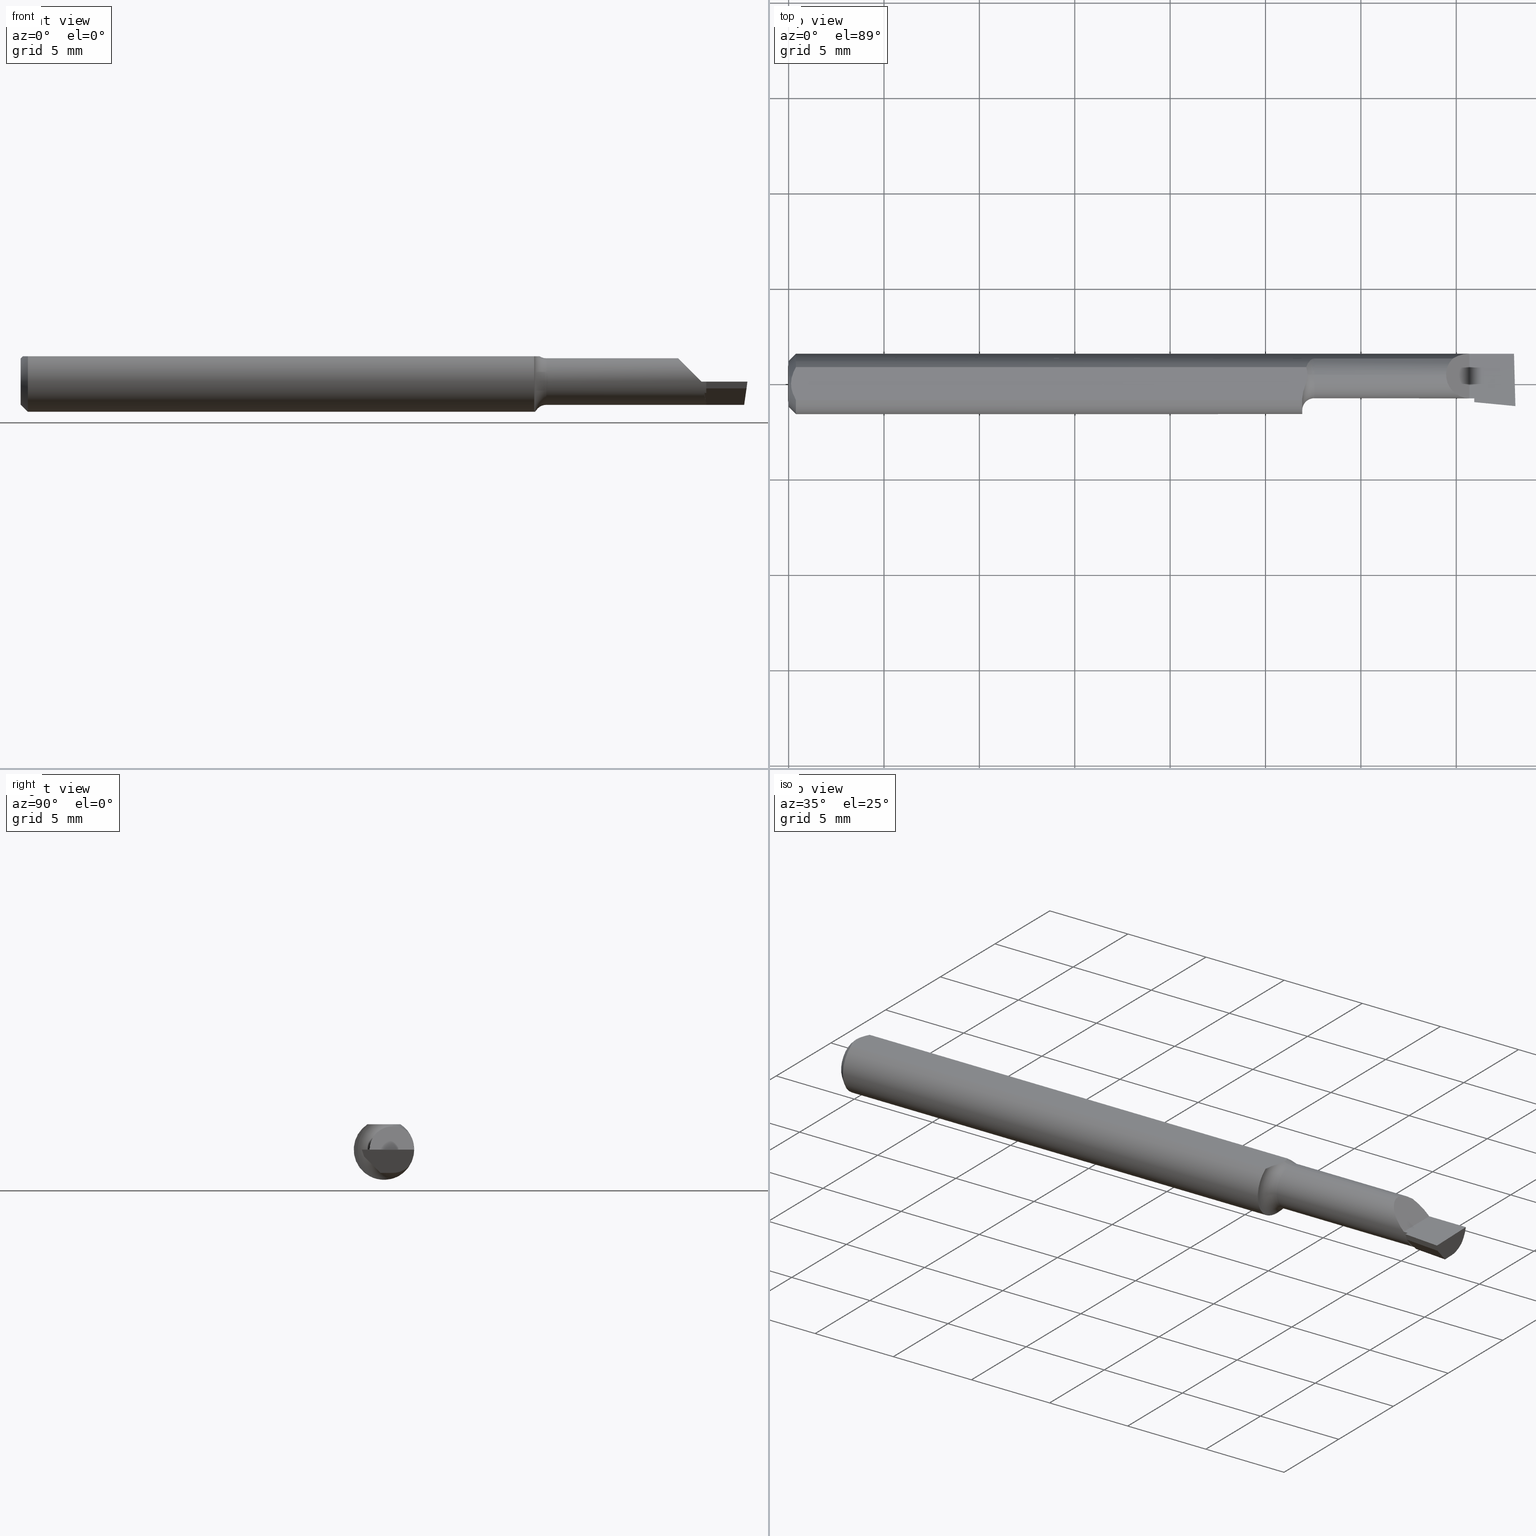
[diagram: canonical four-view strip — front | top / right | iso, engineering-drawing reading convention]
A machine part, canonical four-view strip (front | top / right | iso — engineering-drawing reading convention). The complete STEP part file that produces these views, byte-faithful:
ISO-10303-21;
HEADER;
FILE_DESCRIPTION (( 'STEP AP203' ),
    '1' );
FILE_NAME ('211869-LHB110400.STEP',
    '2024-08-22T22:32:02',
    ( '' ),
    ( '' ),
    'SwSTEP 2.0',
    'SolidWorks 2024',
    '' );
FILE_SCHEMA (( 'CONFIG_CONTROL_DESIGN' ));
ENDSEC;

DATA;
#1 = ORIENTED_EDGE ( 'NONE', *, *, #345, .F. ) ;
#2 = CARTESIAN_POINT ( 'NONE',  ( 0.004999999999989933504, 7.898418140378181697E-16, 0.05235000000000000070 ) ) ;
#3 = PLANE ( 'NONE',  #719 ) ;
#4 = ORIENTED_EDGE ( 'NONE', *, *, #323, .T. ) ;
#5 = FACE_OUTER_BOUND ( 'NONE', #74, .T. ) ;
#6 = VECTOR ( 'NONE', #550, 39.37007874015748143 ) ;
#7 = ORGANIZATION ( 'UNSPECIFIED', 'UNSPECIFIED', '' ) ;
#8 = DIRECTION ( 'NONE',  ( 0.000000000000000000, 0.000000000000000000, 1.000000000000000000 ) ) ;
#9 = LOCAL_TIME ( 15, 32, 2.000000000000000000, #284 ) ;
#10 = CARTESIAN_POINT ( 'NONE',  ( 2.249639673992802012E-32, -0.02965000000000000968, 1.836970198721035850E-16 ) ) ;
#11 = CYLINDRICAL_SURFACE ( 'NONE', #221, 0.04805000000000001631 ) ;
#12 = EDGE_LOOP ( 'NONE', ( #544, #552, #526 ) ) ;
#13 = CARTESIAN_POINT ( 'NONE',  ( 1.069741742128375694, 0.03819491529868379587, 0.04955034320923035890 ) ) ;
#14 = DIRECTION ( 'NONE',  ( 0.000000000000000000, 0.000000000000000000, -1.000000000000000000 ) ) ;
#15 = ADVANCED_FACE ( 'NONE', ( #356 ), #477, .T. ) ;
#16 = DIRECTION ( 'NONE',  ( -1.000000000000000000, -0.000000000000000000, -0.000000000000000000 ) ) ;
#17 = ORIENTED_EDGE ( 'NONE', *, *, #408, .F. ) ;
#18 = AXIS2_PLACEMENT_3D ( 'NONE', #380, #497, #197 ) ;
#19 = CARTESIAN_POINT ( 'NONE',  ( 1.411693566917664233, -0.02373862507460325691, -0.02308979811133086285 ) ) ;
#20 = CC_DESIGN_PERSON_AND_ORGANIZATION_ASSIGNMENT ( #443, #396, ( #442 ) ) ;
#21 = VERTEX_POINT ( 'NONE', #425 ) ;
#22 = CARTESIAN_POINT ( 'NONE',  ( 0.01500000000000000465, 0.000000000000000000, 0.000000000000000000 ) ) ;
#23 =( BOUNDED_CURVE ( )  B_SPLINE_CURVE ( 3, ( #159, #64, #292, #393 ),
 .UNSPECIFIED., .F., .T. ) 
 B_SPLINE_CURVE_WITH_KNOTS ( ( 4, 4 ),
 ( 0.000000000000000000, 1.570796326794896780 ),
 .UNSPECIFIED. ) 
 CURVE ( )  GEOMETRIC_REPRESENTATION_ITEM ( )  RATIONAL_B_SPLINE_CURVE ( ( 1.000000000000000000, 0.8047378541243649375, 0.8047378541243649375, 1.000000000000000000 ) ) 
 REPRESENTATION_ITEM ( '' )  );
#24 = EDGE_CURVE ( 'NONE', #682, #331, #178, .T. ) ;
#25 = CARTESIAN_POINT ( 'NONE',  ( 1.410837422842597277, -0.03263002125198111864, -0.01400000000000000376 ) ) ;
#26 = CARTESIAN_POINT ( 'NONE',  ( 0.000000000000000000, 0.000000000000000000, 0.000000000000000000 ) ) ;
#27 = EDGE_LOOP ( 'NONE', ( #326, #264, #697, #476, #549, #318, #278, #66 ) ) ;
#28 = B_SPLINE_CURVE_WITH_KNOTS ( 'NONE', 3,
 ( #446, #683, #695, #383, #623, #566, #156, #164, #629, #511 ),
 .UNSPECIFIED., .F., .F.,
 ( 4, 2, 2, 2, 4 ),
 ( 0.008710907782719672435, 0.009350423987949217294, 0.009510303039256602642, 0.009670182090563987989, 0.009989940193178756950 ),
 .UNSPECIFIED. ) ;
#29 = CARTESIAN_POINT ( 'NONE',  ( 1.060000000000000275, -0.03386738844380016850, 0.05235000000000000070 ) ) ;
#30 = VERTEX_POINT ( 'NONE', #534 ) ;
#31 = CIRCLE ( 'NONE', #514, 0.02500000000000001527 ) ;
#32 = DIRECTION ( 'NONE',  ( -1.000000000000000000, -0.000000000000000000, -0.000000000000000000 ) ) ;
#33 = EDGE_CURVE ( 'NONE', #678, #49, #138, .T. ) ;
#34 = B_SPLINE_CURVE_WITH_KNOTS ( 'NONE', 3,
 ( #2, #346, #755, #109, #694, #231 ),
 .UNSPECIFIED., .F., .F.,
 ( 4, 2, 4 ),
 ( 0.003037199019464981685, 0.003488061124369675782, 0.003938923229274369879 ),
 .UNSPECIFIED. ) ;
#35 = DIRECTION ( 'NONE',  ( 0.000000000000000000, 0.000000000000000000, -1.000000000000000000 ) ) ;
#36 = VERTEX_POINT ( 'NONE', #486 ) ;
#37 = ADVANCED_FACE ( 'NONE', ( #418 ), #658, .F. ) ;
#38 = DIRECTION ( 'NONE',  ( 0.000000000000000000, 0.000000000000000000, 1.000000000000000000 ) ) ;
#39 = LINE ( 'NONE', #763, #364 ) ;
#40 = EDGE_LOOP ( 'NONE', ( #214, #233 ) ) ;
#41 = CIRCLE ( 'NONE', #236, 0.06235000000000000264 ) ;
#42 = B_SPLINE_CURVE_WITH_KNOTS ( 'NONE', 3,
 ( #220, #455, #426, #306, #661, #359 ),
 .UNSPECIFIED., .F., .F.,
 ( 4, 2, 4 ),
 ( 0.002133667072902290657, 0.002585433046183636171, 0.003037199019464981685 ),
 .UNSPECIFIED. ) ;
#43 = DIRECTION ( 'NONE',  ( 0.000000000000000000, 0.000000000000000000, -1.000000000000000000 ) ) ;
#44 = ORIENTED_EDGE ( 'NONE', *, *, #80, .T. ) ;
#45 = FACE_OUTER_BOUND ( 'NONE', #173, .T. ) ;
#46 = DIRECTION ( 'NONE',  ( 0.000000000000000000, -1.000000000000000000, 0.000000000000000000 ) ) ;
#47 = ADVANCED_FACE ( 'NONE', ( #718 ), #89, .F. ) ;
#48 = DATE_AND_TIME ( #759, #9 ) ;
#49 = VERTEX_POINT ( 'NONE', #132 ) ;
#50 = CARTESIAN_POINT ( 'NONE',  ( 1.060000000000000275, -0.03016902173913061855, -0.05456512281030681533 ) ) ;
#51 = DIRECTION ( 'NONE',  ( 0.000000000000000000, 1.000000000000000000, -7.598598113218357399E-17 ) ) ;
#52 = DATE_AND_TIME ( #692, #670 ) ;
#53 = EDGE_CURVE ( 'NONE', #134, #338, #194, .T. ) ;
#54 = ORIENTED_EDGE ( 'NONE', *, *, #24, .F. ) ;
#55 = DIRECTION ( 'NONE',  ( -1.000000000000000000, -0.000000000000000000, -0.000000000000000000 ) ) ;
#56 = VECTOR ( 'NONE', #762, 39.37007874015748143 ) ;
#57 = CARTESIAN_POINT ( 'NONE',  ( 0.000000000000000000, 0.000000000000000000, 0.000000000000000000 ) ) ;
#58 = DIRECTION ( 'NONE',  ( 0.000000000000000000, 0.000000000000000000, 1.000000000000000000 ) ) ;
#59 = ORIENTED_EDGE ( 'NONE', *, *, #681, .T. ) ;
#60 = EDGE_CURVE ( 'NONE', #574, #678, #655, .T. ) ;
#61 = DIRECTION ( 'NONE',  ( 0.000000000000000000, 0.000000000000000000, 1.000000000000000000 ) ) ;
#62 = CARTESIAN_POINT ( 'NONE',  ( 1.370749270080770188, 0.05210000000000004211, 0.03425072991922942234 ) ) ;
#63 = ORIENTED_EDGE ( 'NONE', *, *, #345, .T. ) ;
#64 = CARTESIAN_POINT ( 'NONE',  ( 1.356949999999999656, -0.009747038327972792557, 0.04805000000000002325 ) ) ;
#65 = DIRECTION ( 'NONE',  ( 0.000000000000000000, 0.000000000000000000, 1.000000000000000000 ) ) ;
#66 = ORIENTED_EDGE ( 'NONE', *, *, #80, .F. ) ;
#67 = CYLINDRICAL_SURFACE ( 'NONE', #118, 0.04805000000000001631 ) ;
#68 = DIRECTION ( 'NONE',  ( -1.000000000000000000, -0.000000000000000000, -0.000000000000000000 ) ) ;
#69 = VECTOR ( 'NONE', #713, 39.37007874015748143 ) ;
#70 = DIRECTION ( 'NONE',  ( -0.000000000000000000, 1.000000000000000000, -0.000000000000000000 ) ) ;
#71 = FACE_OUTER_BOUND ( 'NONE', #639, .T. ) ;
#72 = VERTEX_POINT ( 'NONE', #734 ) ;
#73 = CARTESIAN_POINT ( 'NONE',  ( 1.496703728510623721, -0.03059696116044922226, -0.02443416050283582150 ) ) ;
#74 = EDGE_LOOP ( 'NONE', ( #502, #632, #672, #390, #199, #344 ) ) ;
#75 = CARTESIAN_POINT ( 'NONE',  ( 1.081001860247194912, 0.05138041438525032395, -0.03535223831097245722 ) ) ;
#76 = ORIENTED_EDGE ( 'NONE', *, *, #542, .F. ) ;
#77 = VECTOR ( 'NONE', #321, 39.37007874015748143 ) ;
#78 = LOCAL_TIME ( 15, 32, 2.000000000000000000, #229 ) ;
#79 = CARTESIAN_POINT ( 'NONE',  ( 1.076855754336166093, 0.04856891343705575098, -0.03913748562448279150 ) ) ;
#80 = EDGE_CURVE ( 'NONE', #36, #338, #82, .T. ) ;
#81 = CARTESIAN_POINT ( 'NONE',  ( 1.493274179223395448, -0.006952176690818228158, -0.04805000000000000243 ) ) ;
#82 = LINE ( 'NONE', #144, #553 ) ;
#83 = PERSON_AND_ORGANIZATION ( #250, #7 ) ;
#84 = VERTEX_POINT ( 'NONE', #310 ) ;
#85 = CARTESIAN_POINT ( 'NONE',  ( 1.415000000000000036, 0.01839999999999999275, -0.04805000000000000243 ) ) ;
#86 = ADVANCED_FACE ( 'NONE', ( #372 ), #200, .T. ) ;
#87 = AXIS2_PLACEMENT_3D ( 'NONE', #375, #613, #35 ) ;
#88 = VERTEX_POINT ( 'NONE', #671 ) ;
#89 = TOROIDAL_SURFACE ( 'NONE', #582, 0.07305000000000004545, 0.02500000000000001180 ) ;
#90 = PRODUCT_DEFINITION_FORMATION_WITH_SPECIFIED_SOURCE ( 'ANY', '', #92, .NOT_KNOWN. ) ;
#91 = DIRECTION ( 'NONE',  ( 0.000000000000000000, 0.000000000000000000, 1.000000000000000000 ) ) ;
#92 = PRODUCT ( '211869-LHB110400', '211869-LHB110400', '', ( #669 ) ) ;
#93 = LENGTH_MEASURE_WITH_UNIT ( LENGTH_MEASURE( 0.02539999999999999897 ), #149 );
#94 = ORIENTED_EDGE ( 'NONE', *, *, #135, .F. ) ;
#95 = FACE_OUTER_BOUND ( 'NONE', #196, .T. ) ;
#96 =( NAMED_UNIT ( * ) SI_UNIT ( $, .STERADIAN. ) SOLID_ANGLE_UNIT ( ) );
#97 = ORIENTED_EDGE ( 'NONE', *, *, #417, .T. ) ;
#98 = DIRECTION ( 'NONE',  ( 0.000000000000000000, 0.000000000000000000, 1.000000000000000000 ) ) ;
#99 = DIRECTION ( 'NONE',  ( -0.09584575252022388414, -0.9953961983671787417, 0.000000000000000000 ) ) ;
#100 = CALENDAR_DATE ( 2024, 22, 8 ) ;
#101 = EDGE_LOOP ( 'NONE', ( #360, #458, #202 ) ) ;
#102 = VECTOR ( 'NONE', #258, 39.37007874015748854 ) ;
#103 = LINE ( 'NONE', #510, #733 ) ;
#104 = AXIS2_PLACEMENT_3D ( 'NONE', #26, #254, #729 ) ;
#105 = ADVANCED_FACE ( 'NONE', ( #366 ), #158, .T. ) ;
#106 = DIRECTION ( 'NONE',  ( 0.06836202603457081084, 0.7099667855717586296, 0.7009092642998473455 ) ) ;
#107 = PERSON_AND_ORGANIZATION ( #250, #7 ) ;
#108 = ORIENTED_EDGE ( 'NONE', *, *, #712, .T. ) ;
#109 = CARTESIAN_POINT ( 'NONE',  ( 0.009669996313769781138, 0.02323004575534280344, 0.05234999999999997988 ) ) ;
#110 = DIRECTION ( 'NONE',  ( 1.000000000000000000, 0.000000000000000000, 0.000000000000000000 ) ) ;
#111 = CARTESIAN_POINT ( 'NONE',  ( 1.498219002516429255, -0.04104391038877181624, -0.01400000000000000376 ) ) ;
#112 = ORIENTED_EDGE ( 'NONE', *, *, #489, .F. ) ;
#113 = CARTESIAN_POINT ( 'NONE',  ( 0.01500000000000185039, -0.03386738844380016850, 0.05235000000000000070 ) ) ;
#114 = DIRECTION ( 'NONE',  ( -0.000000000000000000, 1.000000000000000000, 1.224646799147353207E-16 ) ) ;
#115 = PERSON_AND_ORGANIZATION ( #250, #7 ) ;
#116 = ORIENTED_EDGE ( 'NONE', *, *, #688, .F. ) ;
#117 = EDGE_CURVE ( 'NONE', #516, #539, #610, .T. ) ;
#118 = AXIS2_PLACEMENT_3D ( 'NONE', #603, #16, #353 ) ;
#119 = CARTESIAN_POINT ( 'NONE',  ( 1.413967379733374274, -0.005732236225996134062, -0.04155064764002344702 ) ) ;
#120 = ORIENTED_EDGE ( 'NONE', *, *, #309, .F. ) ;
#121 = CARTESIAN_POINT ( 'NONE',  ( 1.085000000000000187, 0.01839999999999999969, 0.000000000000000000 ) ) ;
#122 = LINE ( 'NONE', #533, #281 ) ;
#123 = ORIENTED_EDGE ( 'NONE', *, *, #730, .T. ) ;
#124 = DIRECTION ( 'NONE',  ( -1.000000000000000000, -0.000000000000000000, -0.000000000000000000 ) ) ;
#125 = DIRECTION ( 'NONE',  ( 0.000000000000000000, -0.3019700370129912437, 0.9533174165755980978 ) ) ;
#126 = DIRECTION ( 'NONE',  ( 0.000000000000000000, 0.000000000000000000, -1.000000000000000000 ) ) ;
#127 = CARTESIAN_POINT ( 'NONE',  ( 1.082325466551639526, 0.05179156103572997438, 0.03472422648579344406 ) ) ;
#128 = AXIS2_PLACEMENT_3D ( 'NONE', #251, #484, #243 ) ;
#129 = VERTEX_POINT ( 'NONE', #741 ) ;
#130 = CARTESIAN_POINT ( 'NONE',  ( 1.079178979635575297, 0.05033758282015973057, 0.03680695256572140417 ) ) ;
#131 = EDGE_CURVE ( 'NONE', #305, #272, #558, .T. ) ;
#132 = CARTESIAN_POINT ( 'NONE',  ( 1.415000000000000036, -0.02964999999999999927, 1.836970198721035850E-16 ) ) ;
#133 = CARTESIAN_POINT ( 'NONE',  ( 1.069002343694370971, 0.03635371779854191382, -0.05080473676934869204 ) ) ;
#134 = VERTEX_POINT ( 'NONE', #85 ) ;
#135 = EDGE_CURVE ( 'NONE', #268, #261, #205, .T. ) ;
#136 = CARTESIAN_POINT ( 'NONE',  ( 1.071579710012544817, 0.04200879032723208589, 0.04631940421101479743 ) ) ;
#137 = CARTESIAN_POINT ( 'NONE',  ( 1.070671187967285887, 0.02367561088766262020, 0.05235000000000000070 ) ) ;
#138 = CIRCLE ( 'NONE', #530, 0.04805000000000000243 ) ;
#139 = CIRCLE ( 'NONE', #479, 0.07305000000000004545 ) ;
#140 = SECURITY_CLASSIFICATION ( '', '', #573 ) ;
#141 = CARTESIAN_POINT ( 'NONE',  ( 1.415000000000000036, -0.2500000000000000555, 1.040949779275254546E-17 ) ) ;
#142 = ORIENTED_EDGE ( 'NONE', *, *, #355, .T. ) ;
#143 = ORIENTED_EDGE ( 'NONE', *, *, #688, .T. ) ;
#144 = CARTESIAN_POINT ( 'NONE',  ( 1.415000000000000036, -0.04715489119932631673, 0.0003065779411205334895 ) ) ;
#145 = ORIENTED_EDGE ( 'NONE', *, *, #662, .T. ) ;
#146 = TOROIDAL_SURFACE ( 'NONE', #422, 0.07305000000000004545, 0.02500000000000001180 ) ;
#147 = CARTESIAN_POINT ( 'NONE',  ( 1.412831206499709724, -0.02360198871013168345, -0.02333915795875195556 ) ) ;
#148 = CC_DESIGN_PERSON_AND_ORGANIZATION_ASSIGNMENT ( #83, #505, ( #92 ) ) ;
#149 =( LENGTH_UNIT ( ) NAMED_UNIT ( * ) SI_UNIT ( $, .METRE. ) );
#150 = VERTEX_POINT ( 'NONE', #81 ) ;
#151 = CARTESIAN_POINT ( 'NONE',  ( 1.427414397970785620, 0.1395284478418274410, -0.1900000000000010569 ) ) ;
#152 = CALENDAR_DATE ( 2024, 22, 8 ) ;
#153 = ORIENTED_EDGE ( 'NONE', *, *, #666, .T. ) ;
#154 = EDGE_CURVE ( 'NONE', #134, #440, #381, .T. ) ;
#155 = DIRECTION ( 'NONE',  ( -1.000000000000000000, 0.000000000000000000, -0.000000000000000000 ) ) ;
#156 = CARTESIAN_POINT ( 'NONE',  ( 1.068472683586215055, 0.003926807305079060145, 0.05235000000000000070 ) ) ;
#157 = VERTEX_POINT ( 'NONE', #29 ) ;
#158 = CONICAL_SURFACE ( 'NONE', #87, 0.06235000000000000264, 0.7853981633974596033 ) ;
#159 = CARTESIAN_POINT ( 'NONE',  ( 1.356949999999999656, 0.01839999999999999969, 0.04805000000000001631 ) ) ;
#160 = VECTOR ( 'NONE', #343, 39.37007874015748143 ) ;
#161 = ORIENTED_EDGE ( 'NONE', *, *, #626, .F. ) ;
#162 = CARTESIAN_POINT ( 'NONE',  ( 1.370749270080770188, 0.05210000000000004211, 0.03425072991922942234 ) ) ;
#163 = EDGE_CURVE ( 'NONE', #129, #84, #316, .T. ) ;
#164 = CARTESIAN_POINT ( 'NONE',  ( 1.070168992803495422, 0.01001120360750445450, 0.05235000000000002152 ) ) ;
#165 = APPROVAL_DATE_TIME ( #696, #174 ) ;
#166 = ORIENTED_EDGE ( 'NONE', *, *, #204, .T. ) ;
#167 = FACE_OUTER_BOUND ( 'NONE', #101, .T. ) ;
#168 = CARTESIAN_POINT ( 'NONE',  ( 1.380994055934046338, 0.05883495956508439512, 0.02400594406595350436 ) ) ;
#169 = ORIENTED_EDGE ( 'NONE', *, *, #547, .T. ) ;
#170 = CARTESIAN_POINT ( 'NONE',  ( 1.496648168611692364, -0.03698135454783602755, -0.02634795381193923147 ) ) ;
#171 = CIRCLE ( 'NONE', #599, 0.04805000000000003713 ) ;
#172 = CARTESIAN_POINT ( 'NONE',  ( 0.000000000000000000, 0.01839999999999999969, 0.000000000000000000 ) ) ;
#173 = EDGE_LOOP ( 'NONE', ( #569, #4, #108, #370, #294, #444 ) ) ;
#174 = APPROVAL ( #406, 'UNSPECIFIED' ) ;
#175 = CARTESIAN_POINT ( 'NONE',  ( 1.065629458297511656, 0.02606820000987071159, -0.05677892429946725106 ) ) ;
#176 = B_SPLINE_CURVE_WITH_KNOTS ( 'NONE', 3,
 ( #245, #188, #75, #362, #79, #424, #664, #133, #606, #175, #545, #413 ),
 .UNSPECIFIED., .F., .F.,
 ( 4, 2, 2, 2, 2, 4 ),
 ( 1.968188672910037585E-07, 0.0001598826679621493220, 0.0003195685170570076701, 0.0006389402152467195959, 0.0009583119134364316300, 0.001277683611626143556 ),
 .UNSPECIFIED. ) ;
#177 = FACE_OUTER_BOUND ( 'NONE', #407, .T. ) ;
#178 = LINE ( 'NONE', #352, #354 ) ;
#179 = ADVANCED_FACE ( 'NONE', ( #95 ), #628, .F. ) ;
#180 = CARTESIAN_POINT ( 'NONE',  ( 1.076602410087811545, 0.04843664215652573879, 0.03931692004732176976 ) ) ;
#181 = CARTESIAN_POINT ( 'NONE',  ( 0.000000000000000000, -0.03386738844375222768, 0.05234999999999997988 ) ) ;
#182 = DIRECTION ( 'NONE',  ( 0.000000000000000000, 0.000000000000000000, 1.000000000000000000 ) ) ;
#183 = APPLICATION_CONTEXT ( 'configuration controlled 3d designs of mechanical parts and assemblies' ) ;
#184 = CARTESIAN_POINT ( 'NONE',  ( 1.075232443815719696, 0.04692169178955584580, 0.04112849538229070706 ) ) ;
#185 = AXIS2_PLACEMENT_3D ( 'NONE', #591, #297, #125 ) ;
#186 = AXIS2_PLACEMENT_3D ( 'NONE', #749, #686, #337 ) ;
#187 = ORIENTED_EDGE ( 'NONE', *, *, #485, .T. ) ;
#188 = CARTESIAN_POINT ( 'NONE',  ( 1.082870800850615156, 0.05209999999999990333, -0.03425072991922960969 ) ) ;
#189 = EDGE_CURVE ( 'NONE', #315, #574, #308, .T. ) ;
#190 = ORIENTED_EDGE ( 'NONE', *, *, #551, .F. ) ;
#191 = PLANE ( 'NONE',  #679 ) ;
#192 = DIRECTION ( 'NONE',  ( -1.000000000000000000, -0.000000000000000000, -0.000000000000000000 ) ) ;
#193 = DIRECTION ( 'NONE',  ( 0.000000000000000000, 0.000000000000000000, 1.000000000000000000 ) ) ;
#194 = CIRCLE ( 'NONE', #732, 0.04805000000000000243 ) ;
#195 = VECTOR ( 'NONE', #334, 39.37007874015748143 ) ;
#196 = EDGE_LOOP ( 'NONE', ( #748, #397, #693, #285 ) ) ;
#197 = DIRECTION ( 'NONE',  ( 0.000000000000000000, 0.000000000000000000, 1.000000000000000000 ) ) ;
#198 = CARTESIAN_POINT ( 'NONE',  ( 1.415000000000000036, -0.02332210298107671026, -0.02383419020727221144 ) ) ;
#199 = ORIENTED_EDGE ( 'NONE', *, *, #621, .F. ) ;
#200 = CYLINDRICAL_SURFACE ( 'NONE', #659, 0.06235000000000000264 ) ;
#201 =( CONVERSION_BASED_UNIT ( 'INCH', #93 ) LENGTH_UNIT ( ) NAMED_UNIT ( #330 ) );
#202 = ORIENTED_EDGE ( 'NONE', *, *, #745, .F. ) ;
#203 = PRODUCT_DEFINITION_SHAPE ( 'NONE', 'NONE',  #442 ) ;
#204 = EDGE_CURVE ( 'NONE', #30, #499, #260, .T. ) ;
#205 = LINE ( 'NONE', #317, #102 ) ;
#206 = ORIENTED_EDGE ( 'NONE', *, *, #605, .F. ) ;
#207 = VECTOR ( 'NONE', #648, 39.37007874015748854 ) ;
#208 = CARTESIAN_POINT ( 'NONE',  ( 1.070981797547469361, 0.02106709401679513621, 0.05235000000000000070 ) ) ;
#209 = EDGE_CURVE ( 'NONE', #72, #687, #728, .T. ) ;
#210 = COORDINATED_UNIVERSAL_TIME_OFFSET ( 8, 0, .BEHIND. ) ;
#211 = ORIENTED_EDGE ( 'NONE', *, *, #117, .F. ) ;
#212 = DIRECTION ( 'NONE',  ( -0.9953961983671788527, 0.09584575252022389802, -5.447988978900801795E-16 ) ) ;
#213 = PERSON_AND_ORGANIZATION ( #250, #7 ) ;
#214 = ORIENTED_EDGE ( 'NONE', *, *, #189, .T. ) ;
#215 = LINE ( 'NONE', #170, #501 ) ;
#216 = PLANE ( 'NONE',  #643 ) ;
#217 = APPROVAL_STATUS ( 'not_yet_approved' ) ;
#218 = ORIENTED_EDGE ( 'NONE', *, *, #564, .T. ) ;
#219 = EDGE_CURVE ( 'NONE', #21, #499, #598, .T. ) ;
#220 = CARTESIAN_POINT ( 'NONE',  ( 0.01500000000000185039, -0.03386738844380016850, 0.05235000000000000070 ) ) ;
#221 = AXIS2_PLACEMENT_3D ( 'NONE', #172, #414, #65 ) ;
#222 = CARTESIAN_POINT ( 'NONE',  ( 1.497106751185158791, 0.06234999999999988468, 3.401705905475643973E-19 ) ) ;
#223 = CALENDAR_DATE ( 2024, 22, 8 ) ;
#224 = ORIENTED_EDGE ( 'NONE', *, *, #226, .T. ) ;
#225 = DIRECTION ( 'NONE',  ( 0.000000000000000000, 0.000000000000000000, 1.000000000000000000 ) ) ;
#226 = EDGE_CURVE ( 'NONE', #49, #268, #430, .T. ) ;
#227 = CARTESIAN_POINT ( 'NONE',  ( 1.500000000000000444, 0.01839999999999999275, -0.04805000000000000243 ) ) ;
#228 = FACE_OUTER_BOUND ( 'NONE', #754, .T. ) ;
#229 = COORDINATED_UNIVERSAL_TIME_OFFSET ( 8, 0, .BEHIND. ) ;
#230 = VERTEX_POINT ( 'NONE', #571 ) ;
#231 = CARTESIAN_POINT ( 'NONE',  ( 0.01500000000000000465, 0.03386738844375223462, 0.05234999999999997988 ) ) ;
#232 = DIRECTION ( 'NONE',  ( 0.1175789623991727179, 0.000000000000000000, 0.9930635365378863710 ) ) ;
#233 = ORIENTED_EDGE ( 'NONE', *, *, #417, .F. ) ;
#234 = CARTESIAN_POINT ( 'NONE',  ( 1.361790413321597892, 0.04299473640227064603, 0.04320958667840196776 ) ) ;
#235 = AXIS2_PLACEMENT_3D ( 'NONE', #602, #537, #14 ) ;
#236 = AXIS2_PLACEMENT_3D ( 'NONE', #464, #348, #592 ) ;
#237 = CARTESIAN_POINT ( 'NONE',  ( 1.085000000000000187, 0.01839999999999999969, 0.000000000000000000 ) ) ;
#238 = VERTEX_POINT ( 'NONE', #503 ) ;
#239 = LINE ( 'NONE', #73, #429 ) ;
#240 = PLANE ( 'NONE',  #720 ) ;
#241 = CARTESIAN_POINT ( 'NONE',  ( 1.500000000000000444, 0.01839999999999999275, -0.04805000000000000243 ) ) ;
#242 = VERTEX_POINT ( 'NONE', #460 ) ;
#243 = DIRECTION ( 'NONE',  ( -0.7071067811865516806, 0.000000000000000000, 0.7071067811865431318 ) ) ;
#244 = ORIENTED_EDGE ( 'NONE', *, *, #586, .T. ) ;
#245 = CARTESIAN_POINT ( 'NONE',  ( 1.085000000000000187, 0.05209999999999993109, -0.03425072991922958193 ) ) ;
#246 = EDGE_CURVE ( 'NONE', #129, #272, #512, .T. ) ;
#247 = ORIENTED_EDGE ( 'NONE', *, *, #730, .F. ) ;
#248 = LINE ( 'NONE', #608, #265 ) ;
#249 = CARTESIAN_POINT ( 'NONE',  ( 1.415000000000000036, 0.01839999999999999969, 0.000000000000000000 ) ) ;
#250 = PERSON ( 'UNSPECIFIED', 'UNSPECIFIED', 'UNSPECIFIED', ('UNSPECIFIED'), ('UNSPECIFIED'), ('UNSPECIFIED') ) ;
#251 = CARTESIAN_POINT ( 'NONE',  ( 1.405000000000000249, -0.2500000000000000555, 1.163414459189988826E-17 ) ) ;
#252 = CC_DESIGN_DATE_AND_TIME_ASSIGNMENT ( #457, #290, ( #442 ) ) ;
#253 = DIRECTION ( 'NONE',  ( 0.9953961983671787417, -0.09584575252022421721, -0.000000000000000000 ) ) ;
#254 = DIRECTION ( 'NONE',  ( 0.000000000000000000, 0.000000000000000000, 1.000000000000000000 ) ) ;
#255 = ORIENTED_EDGE ( 'NONE', *, *, #307, .F. ) ;
#256 = CARTESIAN_POINT ( 'NONE',  ( 1.069639022340448165, 0.02881514518107488459, 0.05234999999999998682 ) ) ;
#257 = ORIENTED_EDGE ( 'NONE', *, *, #621, .T. ) ;
#258 = DIRECTION ( 'NONE',  ( 0.9953961983671787417, -0.09584575252022417557, -1.240050636994885152E-16 ) ) ;
#259 = ORIENTED_EDGE ( 'NONE', *, *, #556, .T. ) ;
#260 = LINE ( 'NONE', #498, #615 ) ;
#261 = VERTEX_POINT ( 'NONE', #700 ) ;
#262 = ADVANCED_FACE ( 'NONE', ( #270 ), #3, .F. ) ;
#263 = DIRECTION ( 'NONE',  ( -1.000000000000000000, -0.000000000000000000, -0.000000000000000000 ) ) ;
#264 = ORIENTED_EDGE ( 'NONE', *, *, #650, .T. ) ;
#265 = VECTOR ( 'NONE', #420, 39.37007874015748143 ) ;
#266 = CARTESIAN_POINT ( 'NONE',  ( 1.085000000000000187, 0.01839999999999999969, 0.07305000000000004545 ) ) ;
#267 = UNCERTAINTY_MEASURE_WITH_UNIT (LENGTH_MEASURE( 1.000000000000000082E-05 ), #201, 'distance_accuracy_value', 'NONE');
#268 = VERTEX_POINT ( 'NONE', #441 ) ;
#269 = CARTESIAN_POINT ( 'NONE',  ( 0.000000000000000000, 0.03386738844375223462, 0.05234999999999997988 ) ) ;
#270 = FACE_OUTER_BOUND ( 'NONE', #40, .T. ) ;
#271 = APPROVAL_STATUS ( 'not_yet_approved' ) ;
#272 = VERTEX_POINT ( 'NONE', #691 ) ;
#273 = ADVANCED_FACE ( 'NONE', ( #581 ), #324, .F. ) ;
#274 = DIRECTION ( 'NONE',  ( -1.000000000000000000, -0.000000000000000000, -0.000000000000000000 ) ) ;
#275 = CARTESIAN_POINT ( 'NONE',  ( 1.085000000000000187, 0.01840000000000001010, -0.07305000000000004545 ) ) ;
#276 = CARTESIAN_POINT ( 'NONE',  ( 1.085000000000000187, 0.01839999999999999969, 0.000000000000000000 ) ) ;
#277 = DATE_TIME_ROLE ( 'classification_date' ) ;
#278 = ORIENTED_EDGE ( 'NONE', *, *, #313, .F. ) ;
#279 = AXIS2_PLACEMENT_3D ( 'NONE', #266, #46, #43 ) ;
#280 = ADVANCED_FACE ( 'NONE', ( #333 ), #216, .F. ) ;
#281 = VECTOR ( 'NONE', #411, 39.37007874015748143 ) ;
#282 = DIRECTION ( 'NONE',  ( 0.000000000000000000, 0.000000000000000000, 1.000000000000000000 ) ) ;
#283 = CARTESIAN_POINT ( 'NONE',  ( 1.410837422842597277, -0.03263002125198111864, -0.01400000000000000376 ) ) ;
#284 = COORDINATED_UNIVERSAL_TIME_OFFSET ( 8, 0, .BEHIND. ) ;
#285 = ORIENTED_EDGE ( 'NONE', *, *, #662, .F. ) ;
#286 = ADVANCED_FACE ( 'NONE', ( #387 ), #576, .F. ) ;
#287 = CARTESIAN_POINT ( 'NONE',  ( 0.000000000000000000, 0.000000000000000000, 0.000000000000000000 ) ) ;
#288 = CARTESIAN_POINT ( 'NONE',  ( 1.405000000000000249, 0.06234999999999984999, 1.163414459189988826E-17 ) ) ;
#289 = CARTESIAN_POINT ( 'NONE',  ( 1.415000000000000036, -0.04715489119932631673, 0.0003065779411205334895 ) ) ;
#290 = DATE_TIME_ROLE ( 'creation_date' ) ;
#291 = ORIENTED_EDGE ( 'NONE', *, *, #226, .F. ) ;
#292 = CARTESIAN_POINT ( 'NONE',  ( 1.376852961672026865, -0.02965000000000002703, 0.02814703832797277663 ) ) ;
#293 = LINE ( 'NONE', #181, #616 ) ;
#294 = ORIENTED_EDGE ( 'NONE', *, *, #300, .F. ) ;
#295 = PLANE ( 'NONE',  #128 ) ;
#296 = AXIS2_PLACEMENT_3D ( 'NONE', #459, #274, #633 ) ;
#297 = DIRECTION ( 'NONE',  ( 0.09140971883575740864, 0.9493262270931228652, 0.3007057995042733411 ) ) ;
#298 = ORIENTED_EDGE ( 'NONE', *, *, #676, .T. ) ;
#299 = ORIENTED_EDGE ( 'NONE', *, *, #564, .F. ) ;
#300 = EDGE_CURVE ( 'NONE', #614, #129, #28, .T. ) ;
#301 = CARTESIAN_POINT ( 'NONE',  ( 1.068143989668697280, 0.03386738844377058105, 0.05235000000000000070 ) ) ;
#302 =( BOUNDED_CURVE ( )  B_SPLINE_CURVE ( 3, ( #62, #168, #405, #288 ),
 .UNSPECIFIED., .F., .T. ) 
 B_SPLINE_CURVE_WITH_KNOTS ( ( 4, 4 ),
 ( 0.9892340294005576018, 1.570796326794896558 ),
 .UNSPECIFIED. ) 
 CURVE ( )  GEOMETRIC_REPRESENTATION_ITEM ( )  RATIONAL_B_SPLINE_CURVE ( ( 1.000000000000000000, 0.9720134746468966913, 0.9720134746468966913, 1.000000000000000000 ) ) 
 REPRESENTATION_ITEM ( '' )  );
#303 = ORIENTED_EDGE ( 'NONE', *, *, #645, .T. ) ;
#304 = CARTESIAN_POINT ( 'NONE',  ( 1.085000000000000187, 0.05209999999999988946, 0.03425072991922960969 ) ) ;
#305 = VERTEX_POINT ( 'NONE', #329 ) ;
#306 = CARTESIAN_POINT ( 'NONE',  ( 0.006057557792978136152, -0.01187252718384440922, 0.05234999999999998682 ) ) ;
#307 = EDGE_CURVE ( 'NONE', #88, #134, #752, .T. ) ;
#308 = LINE ( 'NONE', #25, #339 ) ;
#309 = EDGE_CURVE ( 'NONE', #242, #331, #302, .T. ) ;
#310 = CARTESIAN_POINT ( 'NONE',  ( 1.068143989668697280, 0.03386738844377058105, 0.05235000000000000070 ) ) ;
#311 = ORIENTED_EDGE ( 'NONE', *, *, #489, .T. ) ;
#312 = CARTESIAN_POINT ( 'NONE',  ( 1.068925984424407449, 0.03134776901826770434, 0.05235000000000000070 ) ) ;
#313 = EDGE_CURVE ( 'NONE', #338, #315, #546, .T. ) ;
#314 = VECTOR ( 'NONE', #341, 39.37007874015748143 ) ;
#315 = VERTEX_POINT ( 'NONE', #642 ) ;
#316 = B_SPLINE_CURVE_WITH_KNOTS ( 'NONE', 3,
 ( #617, #208, #137, #256, #312, #555 ),
 .UNSPECIFIED., .F., .F.,
 ( 4, 2, 4 ),
 ( 0.0004198065876362512354, 0.0006196366319456719134, 0.0008194666762550926456 ),
 .UNSPECIFIED. ) ;
#317 = CARTESIAN_POINT ( 'NONE',  ( 1.519495909102598796, -0.04752724253123513654, -2.387560267896506853E-18 ) ) ;
#318 = ORIENTED_EDGE ( 'NONE', *, *, #189, .F. ) ;
#319 = EDGE_CURVE ( 'NONE', #483, #516, #433, .T. ) ;
#320 = DIRECTION ( 'NONE',  ( -1.000000000000000000, -0.000000000000000000, -0.000000000000000000 ) ) ;
#321 = DIRECTION ( 'NONE',  ( 0.000000000000000000, 1.000000000000000000, -7.598598113218357399E-17 ) ) ;
#322 = ORIENTED_EDGE ( 'NONE', *, *, #131, .T. ) ;
#323 = EDGE_CURVE ( 'NONE', #238, #440, #31, .T. ) ;
#324 = PLANE ( 'NONE',  #374 ) ;
#325 = APPROVAL_DATE_TIME ( #568, #725 ) ;
#326 = ORIENTED_EDGE ( 'NONE', *, *, #556, .F. ) ;
#327 = DIRECTION ( 'NONE',  ( -0.9953961983671787417, 0.09584575252022423109, -1.182495230326642329E-17 ) ) ;
#328 = CC_DESIGN_PERSON_AND_ORGANIZATION_ASSIGNMENT ( #451, #522, ( #90 ) ) ;
#329 = CARTESIAN_POINT ( 'NONE',  ( 1.356949999999999656, 0.01839999999999999969, 0.04805000000000001631 ) ) ;
#330 = DIMENSIONAL_EXPONENTS ( 1.000000000000000000, 0.000000000000000000, 0.000000000000000000, 0.000000000000000000, 0.000000000000000000, 0.000000000000000000, 0.000000000000000000 ) ;
#331 = VERTEX_POINT ( 'NONE', #588 ) ;
#332 = LINE ( 'NONE', #269, #491 ) ;
#333 = FACE_OUTER_BOUND ( 'NONE', #27, .T. ) ;
#334 = DIRECTION ( 'NONE',  ( -0.000000000000000000, 1.000000000000000000, -1.026701741455300194E-16 ) ) ;
#335 = ORIENTED_EDGE ( 'NONE', *, *, #60, .T. ) ;
#336 = CARTESIAN_POINT ( 'NONE',  ( 1.062386060865227577, 0.01052139226165774502, -0.06200658662318050268 ) ) ;
#337 = DIRECTION ( 'NONE',  ( -1.000000000000000000, 0.000000000000000000, 1.224646799147357645E-16 ) ) ;
#338 = VERTEX_POINT ( 'NONE', #525 ) ;
#339 = VECTOR ( 'NONE', #619, 39.37007874015748854 ) ;
#340 = CIRCLE ( 'NONE', #439, 0.04805000000000003713 ) ;
#341 = DIRECTION ( 'NONE',  ( -0.02677973311239366730, 0.9996413586354002678, 3.234264050030718453E-18 ) ) ;
#342 = DIRECTION ( 'NONE',  ( 0.000000000000000000, -8.537024980200817627E-17, 1.000000000000000000 ) ) ;
#343 = DIRECTION ( 'NONE',  ( 1.000000000000000000, 0.000000000000000000, 0.000000000000000000 ) ) ;
#344 = ORIENTED_EDGE ( 'NONE', *, *, #319, .F. ) ;
#345 = EDGE_CURVE ( 'NONE', #157, #462, #293, .T. ) ;
#346 = CARTESIAN_POINT ( 'NONE',  ( 0.004999999999999268051, 0.005945714695019509340, 0.05235000000000000070 ) ) ;
#347 = FACE_OUTER_BOUND ( 'NONE', #702, .T. ) ;
#348 = DIRECTION ( 'NONE',  ( -1.000000000000000000, -0.000000000000000000, -0.000000000000000000 ) ) ;
#349 = ORIENTED_EDGE ( 'NONE', *, *, #518, .T. ) ;
#350 = CARTESIAN_POINT ( 'NONE',  ( 1.492509240448229857, 0.04299473640227058358, -0.04320958667840199552 ) ) ;
#351 = CARTESIAN_POINT ( 'NONE',  ( 1.413438773033254048, -0.005613966577516781541, -0.04161888885126449611 ) ) ;
#352 = CARTESIAN_POINT ( 'NONE',  ( 1.405000000000000249, -0.2500000000000000555, 1.163414459189988826E-17 ) ) ;
#353 = DIRECTION ( 'NONE',  ( 0.000000000000000000, 0.000000000000000000, 1.000000000000000000 ) ) ;
#354 = VECTOR ( 'NONE', #70, 39.37007874015748143 ) ;
#355 = EDGE_CURVE ( 'NONE', #88, #150, #122, .T. ) ;
#356 = FACE_OUTER_BOUND ( 'NONE', #589, .T. ) ;
#357 = CARTESIAN_POINT ( 'NONE',  ( 1.492252812611470691, 0.03117368152160943096, -0.04805000000000001631 ) ) ;
#358 = ORIENTED_EDGE ( 'NONE', *, *, #154, .T. ) ;
#359 = CARTESIAN_POINT ( 'NONE',  ( 0.004999999999989933504, 7.898418140378181697E-16, 0.05235000000000000070 ) ) ;
#360 = ORIENTED_EDGE ( 'NONE', *, *, #435, .T. ) ;
#361 = ADVANCED_FACE ( 'NONE', ( #347 ), #528, .F. ) ;
#362 = CARTESIAN_POINT ( 'NONE',  ( 1.078063614445013751, 0.04963912592730883311, -0.03775824298307062926 ) ) ;
#363 = CLOSED_SHELL ( 'NONE', ( #368, #579, #450, #179, #105, #601, #273, #15, #86, #707, #286, #595, #47, #504, #37, #454, #722, #361, #262, #280, #378 ) ) ;
#364 = VECTOR ( 'NONE', #521, 39.37007874015748143 ) ;
#365 = CC_DESIGN_SECURITY_CLASSIFICATION ( #140, ( #90 ) ) ;
#366 = FACE_OUTER_BOUND ( 'NONE', #412, .T. ) ;
#367 =( NAMED_UNIT ( * ) PLANE_ANGLE_UNIT ( ) SI_UNIT ( $, .RADIAN. ) );
#368 = ADVANCED_FACE ( 'NONE', ( #177 ), #11, .T. ) ;
#369 = DIRECTION ( 'NONE',  ( 0.000000000000000000, -1.000000000000000000, 0.000000000000000000 ) ) ;
#370 = ORIENTED_EDGE ( 'NONE', *, *, #246, .F. ) ;
#371 = DIRECTION ( 'NONE',  ( -1.000000000000000000, -0.000000000000000000, -0.000000000000000000 ) ) ;
#372 = FACE_OUTER_BOUND ( 'NONE', #449, .T. ) ;
#373 = EDGE_LOOP ( 'NONE', ( #452, #190, #597, #161 ) ) ;
#374 = AXIS2_PLACEMENT_3D ( 'NONE', #57, #110, #508 ) ;
#375 = CARTESIAN_POINT ( 'NONE',  ( 0.01500000000000000465, 0.000000000000000000, 0.000000000000000000 ) ) ;
#376 = AXIS2_PLACEMENT_3D ( 'NONE', #237, #652, #468 ) ;
#377 =( BOUNDED_CURVE ( )  B_SPLINE_CURVE ( 3, ( #471, #350, #357, #536 ),
 .UNSPECIFIED., .F., .T. ) 
 B_SPLINE_CURVE_WITH_KNOTS ( ( 4, 4 ),
 ( 5.728406034261026569, 6.505699533271609880 ),
 .UNSPECIFIED. ) 
 CURVE ( )  GEOMETRIC_REPRESENTATION_ITEM ( )  RATIONAL_B_SPLINE_CURVE ( ( 1.000000000000000000, 0.9502818019828913609, 0.9502818019828913609, 1.000000000000000000 ) ) 
 REPRESENTATION_ITEM ( '' )  );
#378 = ADVANCED_FACE ( 'NONE', ( #5 ), #240, .F. ) ;
#379 = ORIENTED_EDGE ( 'NONE', *, *, #551, .T. ) ;
#380 = CARTESIAN_POINT ( 'NONE',  ( 0.000000000000000000, 0.000000000000000000, 0.000000000000000000 ) ) ;
#381 = LINE ( 'NONE', #674, #756 ) ;
#382 = ORIENTED_EDGE ( 'NONE', *, *, #547, .F. ) ;
#383 = CARTESIAN_POINT ( 'NONE',  ( 1.065733273435468309, -0.004426925067393142239, 0.05235000000000000070 ) ) ;
#384 = PERSON_AND_ORGANIZATION_ROLE ( 'creator' ) ;
#385 = ORIENTED_EDGE ( 'NONE', *, *, #309, .T. ) ;
#386 = CARTESIAN_POINT ( 'NONE',  ( 1.497106751185158791, 0.06234999999999988468, 3.401705905475643973E-19 ) ) ;
#387 = FACE_OUTER_BOUND ( 'NONE', #523, .T. ) ;
#388 = VECTOR ( 'NONE', #253, 39.37007874015748143 ) ;
#389 = PERSON_AND_ORGANIZATION ( #250, #7 ) ;
#390 = ORIENTED_EDGE ( 'NONE', *, *, #355, .F. ) ;
#391 = APPLICATION_CONTEXT ( 'configuration controlled 3d designs of mechanical parts and assemblies' ) ;
#392 =( GEOMETRIC_REPRESENTATION_CONTEXT ( 3 ) GLOBAL_UNCERTAINTY_ASSIGNED_CONTEXT ( ( #267 ) ) GLOBAL_UNIT_ASSIGNED_CONTEXT ( ( #201, #367, #96 ) ) REPRESENTATION_CONTEXT ( 'NONE', 'WORKASPACE' ) );
#393 = CARTESIAN_POINT ( 'NONE',  ( 1.405000000000000249, -0.02965000000000005131, 1.163414459189988826E-17 ) ) ;
#394 = CARTESIAN_POINT ( 'NONE',  ( 1.415000000000000036, -0.005967897507307238537, -0.04141265592875408019 ) ) ;
#395 = CARTESIAN_POINT ( 'NONE',  ( 1.405000000000000249, -0.02965000000000005131, 1.163414459189988826E-17 ) ) ;
#396 = PERSON_AND_ORGANIZATION_ROLE ( 'creator' ) ;
#397 = ORIENTED_EDGE ( 'NONE', *, *, #246, .T. ) ;
#398 = CARTESIAN_POINT ( 'NONE',  ( 1.060000000000000275, -0.02282614954852024355, -0.05862499217990966432 ) ) ;
#399 = CARTESIAN_POINT ( 'NONE',  ( 1.494358607230394265, 0.05883495956508437430, -0.02400594406595357028 ) ) ;
#400 = LINE ( 'NONE', #562, #195 ) ;
#401 = PERSON_AND_ORGANIZATION_ROLE ( 'classification_officer' ) ;
#402 = EDGE_LOOP ( 'NONE', ( #116, #44, #470 ) ) ;
#403 = DIRECTION ( 'NONE',  ( -0.000000000000000000, 0.000000000000000000, 1.000000000000000000 ) ) ;
#404 = MANIFOLD_SOLID_BREP ( 'Extrude7', #363 ) ;
#405 = CARTESIAN_POINT ( 'NONE',  ( 1.392739685260042659, 0.06234999999999999570, 0.01226031473995687834 ) ) ;
#406 = APPROVAL_STATUS ( 'not_yet_approved' ) ;
#407 = EDGE_LOOP ( 'NONE', ( #649, #358, #17, #211, #257 ) ) ;
#408 = EDGE_CURVE ( 'NONE', #539, #440, #453, .T. ) ;
#409 = AXIS2_PLACEMENT_3D ( 'NONE', #22, #371, #98 ) ;
#410 = CARTESIAN_POINT ( 'NONE',  ( 1.085000000000000187, 0.05209999999999993109, -0.03425072991922958193 ) ) ;
#411 = DIRECTION ( 'NONE',  ( 0.02677973311239367077, -0.9996413586354002678, 1.024473771322685542E-16 ) ) ;
#412 = EDGE_LOOP ( 'NONE', ( #76, #604, #311, #559, #427 ) ) ;
#413 = CARTESIAN_POINT ( 'NONE',  ( 1.063943527499067399, 0.01839999999999996153, -0.05957316929625284391 ) ) ;
#414 = DIRECTION ( 'NONE',  ( -1.000000000000000000, -0.000000000000000000, -0.000000000000000000 ) ) ;
#415 = ORIENTED_EDGE ( 'NONE', *, *, #117, .T. ) ;
#416 = DIRECTION ( 'NONE',  ( 0.1020886612874989108, -0.7038430390621320809, 0.7029814233678641777 ) ) ;
#417 = EDGE_CURVE ( 'NONE', #315, #574, #622, .T. ) ;
#418 = FACE_OUTER_BOUND ( 'NONE', #665, .T. ) ;
#419 = AXIS2_PLACEMENT_3D ( 'NONE', #668, #495, #91 ) ;
#420 = DIRECTION ( 'NONE',  ( 0.7071067811865395791, 8.659560562355031466E-17, 0.7071067811865555663 ) ) ;
#421 = VECTOR ( 'NONE', #369, 39.37007874015748143 ) ;
#422 = AXIS2_PLACEMENT_3D ( 'NONE', #121, #751, #61 ) ;
#423 = LINE ( 'NONE', #289, #207 ) ;
#424 = CARTESIAN_POINT ( 'NONE',  ( 1.073631399483170545, 0.04510599191766675314, -0.04319271381807401888 ) ) ;
#425 = CARTESIAN_POINT ( 'NONE',  ( 0.01500000000000000465, 0.03386738844375223462, 0.05234999999999997988 ) ) ;
#426 = CARTESIAN_POINT ( 'NONE',  ( 0.009678036133109300596, -0.02325481837211496039, 0.05235000000000000070 ) ) ;
#427 = ORIENTED_EDGE ( 'NONE', *, *, #204, .F. ) ;
#428 = VECTOR ( 'NONE', #746, 39.37007874015748143 ) ;
#429 = VECTOR ( 'NONE', #416, 39.37007874015748143 ) ;
#430 = LINE ( 'NONE', #141, #421 ) ;
#431 = APPLICATION_PROTOCOL_DEFINITION ( 'international standard', 'config_control_design', 1994, #391 ) ;
#432 = DIRECTION ( 'NONE',  ( 0.000000000000000000, 0.000000000000000000, 1.000000000000000000 ) ) ;
#433 =( BOUNDED_CURVE ( )  B_SPLINE_CURVE ( 3, ( #222, #456, #399, #637 ),
 .UNSPECIFIED., .F., .T. ) 
 B_SPLINE_CURVE_WITH_KNOTS ( ( 4, 4 ),
 ( 4.934903206476713322, 5.516465503871054388 ),
 .UNSPECIFIED. ) 
 CURVE ( )  GEOMETRIC_REPRESENTATION_ITEM ( )  RATIONAL_B_SPLINE_CURVE ( ( 1.000000000000000000, 0.9720134746468964693, 0.9720134746468964693, 1.000000000000000000 ) ) 
 REPRESENTATION_ITEM ( '' )  );
#434 = ORIENTED_EDGE ( 'NONE', *, *, #645, .F. ) ;
#435 = EDGE_CURVE ( 'NONE', #563, #614, #139, .T. ) ;
#436 = DIRECTION ( 'NONE',  ( 0.7071067811865395791, 0.000000000000000000, -0.7071067811865555663 ) ) ;
#437 = ORIENTED_EDGE ( 'NONE', *, *, #494, .F. ) ;
#438 = DIRECTION ( 'NONE',  ( -1.000000000000000000, -0.000000000000000000, -0.000000000000000000 ) ) ;
#439 = AXIS2_PLACEMENT_3D ( 'NONE', #667, #124, #709 ) ;
#440 = VERTEX_POINT ( 'NONE', #698 ) ;
#441 = CARTESIAN_POINT ( 'NONE',  ( 1.415000000000000036, -0.03746543090320940406, 1.835460370743176819E-16 ) ) ;
#442 = PRODUCT_DEFINITION ( 'UNKNOWN', '', #90, #447 ) ;
#443 = PERSON_AND_ORGANIZATION ( #250, #7 ) ;
#444 = ORIENTED_EDGE ( 'NONE', *, *, #435, .F. ) ;
#445 = CC_DESIGN_PERSON_AND_ORGANIZATION_ASSIGNMENT ( #389, #384, ( #90 ) ) ;
#446 = CARTESIAN_POINT ( 'NONE',  ( 1.060000000000000275, -0.03254879782683794270, 0.05235000000000000070 ) ) ;
#447 = DESIGN_CONTEXT ( 'detailed design', #183, 'design' ) ;
#448 = COORDINATED_UNIVERSAL_TIME_OFFSET ( 8, 0, .BEHIND. ) ;
#449 = EDGE_LOOP ( 'NONE', ( #123, #675, #415, #153, #187, #750, #63, #739, #578, #731, #145, #473, #385 ) ) ;
#450 = ADVANCED_FACE ( 'NONE', ( #45 ), #146, .F. ) ;
#451 = PERSON_AND_ORGANIZATION ( #250, #7 ) ;
#452 = ORIENTED_EDGE ( 'NONE', *, *, #131, .F. ) ;
#453 = CIRCLE ( 'NONE', #376, 0.04805000000000003713 ) ;
#454 = ADVANCED_FACE ( 'NONE', ( #524 ), #519, .T. ) ;
#455 = CARTESIAN_POINT ( 'NONE',  ( 0.01216137397042176167, -0.02864146636719541034, 0.05235000000000000070 ) ) ;
#456 = CARTESIAN_POINT ( 'NONE',  ( 1.495655126960955705, 0.06235000000000000958, -0.01226031473995689743 ) ) ;
#457 = DATE_AND_TIME ( #152, #758 ) ;
#458 = ORIENTED_EDGE ( 'NONE', *, *, #681, .F. ) ;
#459 = CARTESIAN_POINT ( 'NONE',  ( 0.000000000000000000, 0.01839999999999999969, 0.000000000000000000 ) ) ;
#460 = CARTESIAN_POINT ( 'NONE',  ( 1.370749270080770188, 0.05210000000000004211, 0.03425072991922942234 ) ) ;
#461 = PLANE ( 'NONE',  #466 ) ;
#462 = VERTEX_POINT ( 'NONE', #113 ) ;
#463 = CARTESIAN_POINT ( 'NONE',  ( 0.01500000000000000465, 0.000000000000000000, -0.06235000000000000264 ) ) ;
#464 = CARTESIAN_POINT ( 'NONE',  ( 1.060000000000000275, 0.000000000000000000, 0.000000000000000000 ) ) ;
#465 = ORIENTED_EDGE ( 'NONE', *, *, #676, .F. ) ;
#466 = AXIS2_PLACEMENT_3D ( 'NONE', #241, #657, #469 ) ;
#467 = PLANE ( 'NONE',  #705 ) ;
#468 = DIRECTION ( 'NONE',  ( 0.000000000000000000, 0.000000000000000000, 1.000000000000000000 ) ) ;
#469 = DIRECTION ( 'NONE',  ( 0.000000000000000000, -1.000000000000000000, 1.026701741455300194E-16 ) ) ;
#470 = ORIENTED_EDGE ( 'NONE', *, *, #53, .F. ) ;
#471 = CARTESIAN_POINT ( 'NONE',  ( 1.493326047240406185, 0.05209999999999995191, -0.03425072991922953336 ) ) ;
#472 = DIRECTION ( 'NONE',  ( -0.9927123040216839778, -0.02659410830638340648, 0.1175373763844853731 ) ) ;
#473 = ORIENTED_EDGE ( 'NONE', *, *, #717, .T. ) ;
#474 = CARTESIAN_POINT ( 'NONE',  ( 1.060000000000000275, -0.03254879782683794270, 0.05235000000000000070 ) ) ;
#475 = CARTESIAN_POINT ( 'NONE',  ( 1.085000000000000187, 0.05209999999999988946, 0.03425072991922960969 ) ) ;
#476 = ORIENTED_EDGE ( 'NONE', *, *, #740, .F. ) ;
#477 = CONICAL_SURFACE ( 'NONE', #565, 0.06235000000000000264, 0.7853981633974596033 ) ;
#478 = DIRECTION ( 'NONE',  ( 0.000000000000000000, -0.3019700370129912437, 0.9533174165755980978 ) ) ;
#479 = AXIS2_PLACEMENT_3D ( 'NONE', #710, #55, #225 ) ;
#480 = CC_DESIGN_PERSON_AND_ORGANIZATION_ASSIGNMENT ( #107, #401, ( #140 ) ) ;
#481 = APPROVAL ( #217, 'UNSPECIFIED' ) ;
#482 = LINE ( 'NONE', #653, #160 ) ;
#483 = VERTEX_POINT ( 'NONE', #386 ) ;
#484 = DIRECTION ( 'NONE',  ( -0.7071067811865432429, 0.000000000000000000, -0.7071067811865517916 ) ) ;
#485 = EDGE_CURVE ( 'NONE', #238, #563, #735, .T. ) ;
#486 = CARTESIAN_POINT ( 'NONE',  ( 1.415000000000000036, 0.0005847695250460992200, -0.04805000000000000243 ) ) ;
#487 = LINE ( 'NONE', #727, #77 ) ;
#488 = CARTESIAN_POINT ( 'NONE',  ( 1.250000000000000000, 0.05209999999999995191, -0.03425072991922953336 ) ) ;
#489 = EDGE_CURVE ( 'NONE', #230, #21, #34, .T. ) ;
#490 =( BOUNDED_CURVE ( )  B_SPLINE_CURVE ( 3, ( #162, #234, #627, #689 ),
 .UNSPECIFIED., .F., .T. ) 
 B_SPLINE_CURVE_WITH_KNOTS ( ( 4, 4 ),
 ( 5.505891808169000257, 6.283185307179586232 ),
 .UNSPECIFIED. ) 
 CURVE ( )  GEOMETRIC_REPRESENTATION_ITEM ( )  RATIONAL_B_SPLINE_CURVE ( ( 1.000000000000000000, 0.9502818019828911389, 0.9502818019828911389, 1.000000000000000000 ) ) 
 REPRESENTATION_ITEM ( '' )  );
#491 = VECTOR ( 'NONE', #507, 39.37007874015748143 ) ;
#492 = DIRECTION ( 'NONE',  ( 0.000000000000000000, -0.7025528302622680021, 0.7116315905652844664 ) ) ;
#493 = ORIENTED_EDGE ( 'NONE', *, *, #535, .T. ) ;
#494 = EDGE_CURVE ( 'NONE', #21, #84, #332, .T. ) ;
#495 = DIRECTION ( 'NONE',  ( -1.000000000000000000, -0.000000000000000000, -0.000000000000000000 ) ) ;
#496 = ORIENTED_EDGE ( 'NONE', *, *, #33, .F. ) ;
#497 = DIRECTION ( 'NONE',  ( -1.000000000000000000, -0.000000000000000000, -0.000000000000000000 ) ) ;
#498 = CARTESIAN_POINT ( 'NONE',  ( 0.01500000000000000465, 0.000000000000000000, -0.06235000000000000264 ) ) ;
#499 = VERTEX_POINT ( 'NONE', #463 ) ;
#500 = CARTESIAN_POINT ( 'NONE',  ( 0.000000000000000000, 0.01839999999999999969, 0.04805000000000001631 ) ) ;
#501 = VECTOR ( 'NONE', #575, 39.37007874015748143 ) ;
#502 = ORIENTED_EDGE ( 'NONE', *, *, #535, .F. ) ;
#503 = CARTESIAN_POINT ( 'NONE',  ( 1.063943527499067399, 0.01839999999999996153, -0.05957316929625284391 ) ) ;
#504 = ADVANCED_FACE ( 'NONE', ( #167 ), #467, .F. ) ;
#505 = PERSON_AND_ORGANIZATION_ROLE ( 'design_owner' ) ;
#506 = EDGE_LOOP ( 'NONE', ( #59, #509, #612, #437, #112, #299, #1 ) ) ;
#507 = DIRECTION ( 'NONE',  ( 1.000000000000000000, 0.000000000000000000, 0.000000000000000000 ) ) ;
#508 = DIRECTION ( 'NONE',  ( 0.000000000000000000, 0.000000000000000000, -1.000000000000000000 ) ) ;
#509 = ORIENTED_EDGE ( 'NONE', *, *, #300, .T. ) ;
#510 = CARTESIAN_POINT ( 'NONE',  ( 1.497519502181862361, -0.007360954797780148648, -0.04805000000000000243 ) ) ;
#511 = CARTESIAN_POINT ( 'NONE',  ( 1.070981797547136738, 0.01840000000000274402, 0.05235000000000000070 ) ) ;
#512 = CIRCLE ( 'NONE', #279, 0.02500000000000001527 ) ;
#513 = DIRECTION ( 'NONE',  ( -1.000000000000000000, -0.000000000000000000, -0.000000000000000000 ) ) ;
#514 = AXIS2_PLACEMENT_3D ( 'NONE', #275, #114, #342 ) ;
#515 = APPROVAL_ROLE ( '' ) ;
#516 = VERTEX_POINT ( 'NONE', #636 ) ;
#517 = APPROVAL_PERSON_ORGANIZATION ( #213, #481, #747 ) ;
#518 = EDGE_CURVE ( 'NONE', #687, #261, #215, .T. ) ;
#519 = CYLINDRICAL_SURFACE ( 'NONE', #296, 0.04805000000000001631 ) ;
#520 = DIRECTION ( 'NONE',  ( 0.000000000000000000, -0.7025528302622680021, 0.7116315905652844664 ) ) ;
#521 = DIRECTION ( 'NONE',  ( 1.000000000000000000, 0.000000000000000000, 0.000000000000000000 ) ) ;
#522 = PERSON_AND_ORGANIZATION_ROLE ( 'design_supplier' ) ;
#523 = EDGE_LOOP ( 'NONE', ( #706, #493, #247, #54, #303, #224 ) ) ;
#524 = FACE_OUTER_BOUND ( 'NONE', #373, .T. ) ;
#525 = CARTESIAN_POINT ( 'NONE',  ( 1.415000000000000036, -0.005967897507307238537, -0.04141265592875408019 ) ) ;
#526 = ORIENTED_EDGE ( 'NONE', *, *, #408, .T. ) ;
#527 = CARTESIAN_POINT ( 'NONE',  ( 1.063943527499067399, 0.01839999999999996153, -0.05957316929625284391 ) ) ;
#528 = PLANE ( 'NONE',  #185 ) ;
#529 = DIRECTION ( 'NONE',  ( -1.000000000000000000, -0.000000000000000000, -0.000000000000000000 ) ) ;
#530 = AXIS2_PLACEMENT_3D ( 'NONE', #249, #529, #182 ) ;
#531 = LOCAL_TIME ( 15, 32, 2.000000000000000000, #210 ) ;
#532 = CARTESIAN_POINT ( 'NONE',  ( 1.415000000000000036, -0.04746543090320935049, 0.000000000000000000 ) ) ;
#533 = CARTESIAN_POINT ( 'NONE',  ( 1.492600321638198890, 0.01820176749397692598, -0.04805000000000000243 ) ) ;
#534 = CARTESIAN_POINT ( 'NONE',  ( 0.000000000000000000, 0.000000000000000000, -0.04734999999999965625 ) ) ;
#535 = EDGE_CURVE ( 'NONE', #261, #483, #703, .T. ) ;
#536 = CARTESIAN_POINT ( 'NONE',  ( 1.492595011120021908, 0.01839999999999999275, -0.04805000000000000243 ) ) ;
#537 = DIRECTION ( 'NONE',  ( 1.000000000000000000, 0.000000000000000000, 0.000000000000000000 ) ) ;
#538 = CARTESIAN_POINT ( 'NONE',  ( 1.083628380198574215, 0.05210000000115953128, 0.03425072991746615225 ) ) ;
#539 = VERTEX_POINT ( 'NONE', #410 ) ;
#540 = CARTESIAN_POINT ( 'NONE',  ( 1.415000000000000036, -0.03837728993574562181, 0.002878732955684627087 ) ) ;
#541 = CIRCLE ( 'NONE', #18, 0.04734999999999965625 ) ;
#542 = EDGE_CURVE ( 'NONE', #557, #30, #630, .T. ) ;
#543 = APPROVAL_PERSON_ORGANIZATION ( #638, #725, #624 ) ;
#544 = ORIENTED_EDGE ( 'NONE', *, *, #323, .F. ) ;
#545 = CARTESIAN_POINT ( 'NONE',  ( 1.064710485888421543, 0.02227973916747841288, -0.05837485801745214559 ) ) ;
#546 =( BOUNDED_CURVE ( )  B_SPLINE_CURVE ( 3, ( #394, #757, #119, #634 ),
 .UNSPECIFIED., .F., .T. ) 
 B_SPLINE_CURVE_WITH_KNOTS ( ( 4, 4 ),
 ( 3.401551700436511005, 3.410076864869624469 ),
 .UNSPECIFIED. ) 
 CURVE ( )  GEOMETRIC_REPRESENTATION_ITEM ( )  RATIONAL_B_SPLINE_CURVE ( ( 1.000000000000000000, 0.9999939434734527177, 0.9999939434734527177, 1.000000000000000000 ) ) 
 REPRESENTATION_ITEM ( '' )  );
#547 = EDGE_CURVE ( 'NONE', #305, #682, #23, .T. ) ;
#548 = CARTESIAN_POINT ( 'NONE',  ( 0.01500000000000000465, 0.000000000000000000, 0.000000000000000000 ) ) ;
#549 = ORIENTED_EDGE ( 'NONE', *, *, #60, .F. ) ;
#550 = DIRECTION ( 'NONE',  ( -1.000000000000000000, -0.000000000000000000, -0.000000000000000000 ) ) ;
#551 = EDGE_CURVE ( 'NONE', #242, #305, #490, .T. ) ;
#552 = ORIENTED_EDGE ( 'NONE', *, *, #666, .F. ) ;
#553 = VECTOR ( 'NONE', #492, 39.37007874015748854 ) ;
#554 = APPROVAL_PERSON_ORGANIZATION ( #115, #174, #515 ) ;
#555 = CARTESIAN_POINT ( 'NONE',  ( 1.068143989668697280, 0.03386738844377058105, 0.05235000000000000070 ) ) ;
#556 = EDGE_CURVE ( 'NONE', #150, #36, #103, .T. ) ;
#557 = VERTEX_POINT ( 'NONE', #570 ) ;
#558 = LINE ( 'NONE', #500, #428 ) ;
#559 = ORIENTED_EDGE ( 'NONE', *, *, #219, .T. ) ;
#560 = PRODUCT_RELATED_PRODUCT_CATEGORY ( 'detail', '', ( #92 ) ) ;
#561 = B_SPLINE_CURVE_WITH_KNOTS ( 'NONE', 3,
 ( #301, #13, #136, #184, #180, #130, #656, #127, #538, #304 ),
 .UNSPECIFIED., .F., .F.,
 ( 4, 2, 2, 2, 4 ),
 ( 3.799952872682176062E-07, 0.0004056523638566303163, 0.0006082885481413108928, 0.0007096066402836480368, 0.0008109247324259852892 ),
 .UNSPECIFIED. ) ;
#562 = CARTESIAN_POINT ( 'NONE',  ( 1.415000000000000036, 0.01839999999999999275, -0.04805000000000000243 ) ) ;
#563 = VERTEX_POINT ( 'NONE', #50 ) ;
#564 = EDGE_CURVE ( 'NONE', #462, #230, #42, .T. ) ;
#565 = AXIS2_PLACEMENT_3D ( 'NONE', #715, #711, #126 ) ;
#566 = CARTESIAN_POINT ( 'NONE',  ( 1.067828960781367797, 0.001899305342642767461, 0.05235000000000001458 ) ) ;
#567 = AXIS2_PLACEMENT_3D ( 'NONE', #701, #577, #51 ) ;
#568 = DATE_AND_TIME ( #100, #78 ) ;
#569 = ORIENTED_EDGE ( 'NONE', *, *, #485, .F. ) ;
#570 = CARTESIAN_POINT ( 'NONE',  ( 0.000000000000000000, 6.717187693323211459E-18, 0.04734999999999965625 ) ) ;
#571 = CARTESIAN_POINT ( 'NONE',  ( 0.004999999999989933504, 7.898418140378181697E-16, 0.05235000000000000070 ) ) ;
#572 = FACE_OUTER_BOUND ( 'NONE', #506, .T. ) ;
#573 = SECURITY_CLASSIFICATION_LEVEL ( 'unclassified' ) ;
#574 = VERTEX_POINT ( 'NONE', #19 ) ;
#575 = DIRECTION ( 'NONE',  ( 0.1199690778467079888, -0.3102690083707251301, 0.9430485474275740465 ) ) ;
#576 = PLANE ( 'NONE',  #186 ) ;
#577 = DIRECTION ( 'NONE',  ( 0.000000000000000000, -7.598598113218357399E-17, -1.000000000000000000 ) ) ;
#578 = ORIENTED_EDGE ( 'NONE', *, *, #219, .F. ) ;
#579 = ADVANCED_FACE ( 'NONE', ( #71 ), #67, .T. ) ;
#580 = CARTESIAN_POINT ( 'NONE',  ( 1.060208269291442296, -0.01460127996857757231, -0.06118787137580491281 ) ) ;
#581 = FACE_OUTER_BOUND ( 'NONE', #618, .T. ) ;
#582 = AXIS2_PLACEMENT_3D ( 'NONE', #663, #192, #8 ) ;
#583 = PLANE ( 'NONE',  #567 ) ;
#584 = AXIS2_PLACEMENT_3D ( 'NONE', #287, #646, #282 ) ;
#585 = ORIENTED_EDGE ( 'NONE', *, *, #673, .T. ) ;
#586 = EDGE_CURVE ( 'NONE', #72, #268, #600, .T. ) ;
#587 = CARTESIAN_POINT ( 'NONE',  ( 1.061396250014342124, 0.002002297547419222903, -0.06287403108402092600 ) ) ;
#588 = CARTESIAN_POINT ( 'NONE',  ( 1.405000000000000249, 0.06234999999999984999, 1.163414459189988826E-17 ) ) ;
#589 = EDGE_LOOP ( 'NONE', ( #206, #465, #166, #585, #218 ) ) ;
#590 = CARTESIAN_POINT ( 'NONE',  ( 1.505470475818720733, -0.2498534495585265913, -6.699400701208952412E-19 ) ) ;
#591 = CARTESIAN_POINT ( 'NONE',  ( 1.410837422842597277, -0.03263002125198111864, -0.01400000000000000376 ) ) ;
#592 = DIRECTION ( 'NONE',  ( 0.000000000000000000, 0.000000000000000000, 1.000000000000000000 ) ) ;
#593 = ORIENTED_EDGE ( 'NONE', *, *, #740, .T. ) ;
#594 = DIRECTION ( 'NONE',  ( 0.000000000000000000, 0.000000000000000000, -1.000000000000000000 ) ) ;
#595 = ADVANCED_FACE ( 'NONE', ( #721 ), #295, .F. ) ;
#596 = CARTESIAN_POINT ( 'NONE',  ( 1.411693566917664233, -0.02373862507460325691, -0.02308979811133086285 ) ) ;
#597 = ORIENTED_EDGE ( 'NONE', *, *, #717, .F. ) ;
#598 = CIRCLE ( 'NONE', #690, 0.06235000000000000264 ) ;
#599 = AXIS2_PLACEMENT_3D ( 'NONE', #276, #513, #58 ) ;
#600 = LINE ( 'NONE', #540, #743 ) ;
#601 = ADVANCED_FACE ( 'NONE', ( #651 ), #191, .F. ) ;
#602 = CARTESIAN_POINT ( 'NONE',  ( 1.415000000000000036, -0.04746543090320935049, 0.000000000000000000 ) ) ;
#603 = CARTESIAN_POINT ( 'NONE',  ( 0.000000000000000000, 0.01839999999999999969, 0.000000000000000000 ) ) ;
#604 = ORIENTED_EDGE ( 'NONE', *, *, #605, .T. ) ;
#605 = EDGE_CURVE ( 'NONE', #557, #230, #248, .T. ) ;
#606 = CARTESIAN_POINT ( 'NONE',  ( 1.067774730512701220, 0.03308328010062943497, -0.05299899880320901868 ) ) ;
#607 = ORIENTED_EDGE ( 'NONE', *, *, #24, .T. ) ;
#608 = CARTESIAN_POINT ( 'NONE',  ( 0.01500000000000000465, 7.635672792683746671E-18, 0.06235000000000000264 ) ) ;
#609 = CIRCLE ( 'NONE', #409, 0.06235000000000000264 ) ;
#610 = LINE ( 'NONE', #488, #6 ) ;
#611 = CARTESIAN_POINT ( 'NONE',  ( 0.000000000000000000, 0.000000000000000000, 0.000000000000000000 ) ) ;
#612 = ORIENTED_EDGE ( 'NONE', *, *, #163, .T. ) ;
#613 = DIRECTION ( 'NONE',  ( 1.000000000000000000, 0.000000000000000000, 0.000000000000000000 ) ) ;
#614 = VERTEX_POINT ( 'NONE', #474 ) ;
#615 = VECTOR ( 'NONE', #436, 39.37007874015748143 ) ;
#616 = VECTOR ( 'NONE', #68, 39.37007874015748143 ) ;
#617 = CARTESIAN_POINT ( 'NONE',  ( 1.070981797547136738, 0.01840000000000274402, 0.05235000000000000070 ) ) ;
#618 = EDGE_LOOP ( 'NONE', ( #298, #760 ) ) ;
#619 = DIRECTION ( 'NONE',  ( -0.06717917588521572780, -0.6976824170844040385, 0.7132504491541850067 ) ) ;
#620 = ORIENTED_EDGE ( 'NONE', *, *, #33, .T. ) ;
#621 = EDGE_CURVE ( 'NONE', #516, #88, #377, .T. ) ;
#622 =( BOUNDED_CURVE ( )  B_SPLINE_CURVE ( 3, ( #351, #704, #647, #596 ),
 .UNSPECIFIED., .F., .T. ) 
 B_SPLINE_CURVE_WITH_KNOTS ( ( 4, 4 ),
 ( 5.235722629572546083, 5.781918477337279150 ),
 .UNSPECIFIED. ) 
 CURVE ( )  GEOMETRIC_REPRESENTATION_ITEM ( )  RATIONAL_B_SPLINE_CURVE ( ( 1.000000000000000000, 0.9752933061899736744, 0.9752933061899736744, 1.000000000000000000 ) ) 
 REPRESENTATION_ITEM ( '' )  );
#623 = CARTESIAN_POINT ( 'NONE',  ( 1.066444481247749154, -0.002321935523631096180, 0.05235000000000000070 ) ) ;
#624 = APPROVAL_ROLE ( '' ) ;
#625 = ORIENTED_EDGE ( 'NONE', *, *, #586, .F. ) ;
#626 = EDGE_CURVE ( 'NONE', #272, #723, #340, .T. ) ;
#627 = CARTESIAN_POINT ( 'NONE',  ( 1.356949999999999656, 0.03117368152160946565, 0.04805000000000002325 ) ) ;
#628 = TOROIDAL_SURFACE ( 'NONE', #419, 0.07305000000000004545, 0.02500000000000001180 ) ;
#629 = CARTESIAN_POINT ( 'NONE',  ( 1.070981797547482461, 0.01413224874558612239, 0.05235000000000000070 ) ) ;
#630 = CIRCLE ( 'NONE', #584, 0.04734999999999965625 ) ;
#631 = SHAPE_DEFINITION_REPRESENTATION ( #203, #640 ) ;
#632 = ORIENTED_EDGE ( 'NONE', *, *, #518, .F. ) ;
#633 = DIRECTION ( 'NONE',  ( 0.000000000000000000, 0.000000000000000000, 1.000000000000000000 ) ) ;
#634 = CARTESIAN_POINT ( 'NONE',  ( 1.413438773033254048, -0.005613966577516781541, -0.04161888885126449611 ) ) ;
#635 = EDGE_LOOP ( 'NONE', ( #120, #379, #169, #607 ) ) ;
#636 = CARTESIAN_POINT ( 'NONE',  ( 1.493326047240406185, 0.05209999999999995191, -0.03425072991922953336 ) ) ;
#637 = CARTESIAN_POINT ( 'NONE',  ( 1.493326047240406185, 0.05209999999999995191, -0.03425072991922953336 ) ) ;
#638 = PERSON_AND_ORGANIZATION ( #250, #7 ) ;
#639 = EDGE_LOOP ( 'NONE', ( #685, #654, #742, #97, #335, #620, #434, #382, #322, #644 ) ) ;
#640 = ADVANCED_BREP_SHAPE_REPRESENTATION ( '211869-LHB110400', ( #404, #104 ), #392 ) ;
#641 = CARTESIAN_POINT ( 'NONE',  ( 1.060000000000000275, -0.05465000000000004576, 0.000000000000000000 ) ) ;
#642 = CARTESIAN_POINT ( 'NONE',  ( 1.413438773033254048, -0.005613966577516781541, -0.04161888885126449611 ) ) ;
#643 = AXIS2_PLACEMENT_3D ( 'NONE', #283, #106, #520 ) ;
#644 = ORIENTED_EDGE ( 'NONE', *, *, #712, .F. ) ;
#645 = EDGE_CURVE ( 'NONE', #682, #49, #716, .T. ) ;
#646 = DIRECTION ( 'NONE',  ( -1.000000000000000000, -0.000000000000000000, -0.000000000000000000 ) ) ;
#647 = CARTESIAN_POINT ( 'NONE',  ( 1.412103466032909926, -0.01948165999997935119, -0.03085871208668647045 ) ) ;
#648 = DIRECTION ( 'NONE',  ( 0.000000000000000000, -0.7025528302622680021, 0.7116315905652844664 ) ) ;
#649 = ORIENTED_EDGE ( 'NONE', *, *, #307, .T. ) ;
#650 = EDGE_CURVE ( 'NONE', #150, #687, #239, .T. ) ;
#651 = FACE_OUTER_BOUND ( 'NONE', #402, .T. ) ;
#652 = DIRECTION ( 'NONE',  ( -1.000000000000000000, -0.000000000000000000, -0.000000000000000000 ) ) ;
#653 = CARTESIAN_POINT ( 'NONE',  ( 2.249639673992802012E-32, 0.06234999999999999570, 1.836970198721035850E-16 ) ) ;
#654 = ORIENTED_EDGE ( 'NONE', *, *, #53, .T. ) ;
#655 =( BOUNDED_CURVE ( )  B_SPLINE_CURVE ( 3, ( #738, #147, #680, #198 ),
 .UNSPECIFIED., .F., .T. ) 
 B_SPLINE_CURVE_WITH_KNOTS ( ( 4, 4 ),
 ( 2.863881017104891402, 2.881633606743074338 ),
 .UNSPECIFIED. ) 
 CURVE ( )  GEOMETRIC_REPRESENTATION_ITEM ( )  RATIONAL_B_SPLINE_CURVE ( ( 1.000000000000000000, 0.9999737373025290310, 0.9999737373025290310, 1.000000000000000000 ) ) 
 REPRESENTATION_ITEM ( '' )  );
#656 = CARTESIAN_POINT ( 'NONE',  ( 1.080111704662779060, 0.05090166660896860290, 0.03601608024180080053 ) ) ;
#657 = DIRECTION ( 'NONE',  ( -0.000000000000000000, 1.026701741455300194E-16, 1.000000000000000000 ) ) ;
#658 = PLANE ( 'NONE',  #235 ) ;
#659 = AXIS2_PLACEMENT_3D ( 'NONE', #611, #263, #432 ) ;
#660 = CC_DESIGN_APPROVAL ( #174, ( #442 ) ) ;
#661 = CARTESIAN_POINT ( 'NONE',  ( 0.004999999999998882075, -0.005957634400466951113, 0.05235000000000000070 ) ) ;
#662 = EDGE_CURVE ( 'NONE', #84, #723, #561, .T. ) ;
#663 = CARTESIAN_POINT ( 'NONE',  ( 1.085000000000000187, 0.01839999999999999969, 0.000000000000000000 ) ) ;
#664 = CARTESIAN_POINT ( 'NONE',  ( 1.071960678340713624, 0.04239780856895183914, -0.04588180363204295842 ) ) ;
#665 = EDGE_LOOP ( 'NONE', ( #496, #593, #244, #291 ) ) ;
#666 = EDGE_CURVE ( 'NONE', #539, #238, #176, .T. ) ;
#667 = CARTESIAN_POINT ( 'NONE',  ( 1.085000000000000187, 0.01839999999999999969, 0.000000000000000000 ) ) ;
#668 = CARTESIAN_POINT ( 'NONE',  ( 1.085000000000000187, 0.01839999999999999969, 0.000000000000000000 ) ) ;
#669 = MECHANICAL_CONTEXT ( 'NONE', #391, 'mechanical' ) ;
#670 = LOCAL_TIME ( 15, 32, 2.000000000000000000, #448 ) ;
#671 = CARTESIAN_POINT ( 'NONE',  ( 1.492595011120021908, 0.01839999999999999275, -0.04805000000000000243 ) ) ;
#672 = ORIENTED_EDGE ( 'NONE', *, *, #650, .F. ) ;
#673 = EDGE_CURVE ( 'NONE', #499, #462, #609, .T. ) ;
#674 = CARTESIAN_POINT ( 'NONE',  ( 0.000000000000000000, 0.01840000000000000663, -0.04805000000000001631 ) ) ;
#675 = ORIENTED_EDGE ( 'NONE', *, *, #319, .T. ) ;
#676 = EDGE_CURVE ( 'NONE', #30, #557, #541, .T. ) ;
#677 = CARTESIAN_POINT ( 'NONE',  ( 1.410837422842597277, -0.03263002125198111864, -0.01400000000000000376 ) ) ;
#678 = VERTEX_POINT ( 'NONE', #737 ) ;
#679 = AXIS2_PLACEMENT_3D ( 'NONE', #532, #724, #594 ) ;
#680 = CARTESIAN_POINT ( 'NONE',  ( 1.413933379806532553, -0.02346314436586248789, -0.02358729517415169424 ) ) ;
#681 = EDGE_CURVE ( 'NONE', #157, #614, #487, .T. ) ;
#682 = VERTEX_POINT ( 'NONE', #395 ) ;
#683 = CARTESIAN_POINT ( 'NONE',  ( 1.059999999999999609, -0.02370331694302425102, 0.05235000000000000070 ) ) ;
#684 = COORDINATED_UNIVERSAL_TIME_OFFSET ( 8, 0, .BEHIND. ) ;
#685 = ORIENTED_EDGE ( 'NONE', *, *, #154, .F. ) ;
#686 = DIRECTION ( 'NONE',  ( -1.224646799147357645E-16, 0.000000000000000000, -1.000000000000000000 ) ) ;
#687 = VERTEX_POINT ( 'NONE', #111 ) ;
#688 = EDGE_CURVE ( 'NONE', #36, #134, #400, .T. ) ;
#689 = CARTESIAN_POINT ( 'NONE',  ( 1.356949999999999656, 0.01839999999999999969, 0.04805000000000001631 ) ) ;
#690 = AXIS2_PLACEMENT_3D ( 'NONE', #548, #32, #193 ) ;
#691 = CARTESIAN_POINT ( 'NONE',  ( 1.085000000000000187, 0.01839999999999999969, 0.04805000000000003713 ) ) ;
#692 = CALENDAR_DATE ( 2024, 22, 8 ) ;
#693 = ORIENTED_EDGE ( 'NONE', *, *, #626, .T. ) ;
#694 = CARTESIAN_POINT ( 'NONE',  ( 0.01218518006020414754, 0.02868529347538064517, 0.05234999999999998682 ) ) ;
#695 = CARTESIAN_POINT ( 'NONE',  ( 1.062303759621186172, -0.01498943330717220253, 0.05234999999999998682 ) ) ;
#696 = DATE_AND_TIME ( #223, #531 ) ;
#697 = ORIENTED_EDGE ( 'NONE', *, *, #209, .F. ) ;
#698 = CARTESIAN_POINT ( 'NONE',  ( 1.085000000000000187, 0.01840000000000001010, -0.04805000000000003713 ) ) ;
#699 = CC_DESIGN_DATE_AND_TIME_ASSIGNMENT ( #48, #277, ( #140 ) ) ;
#700 = CARTESIAN_POINT ( 'NONE',  ( 1.500000000000000444, -0.04565000000000024594, 1.878145495644180839E-16 ) ) ;
#701 = CARTESIAN_POINT ( 'NONE',  ( 1.500000000000000222, 0.1123499999999999915, 0.05234999999999998682 ) ) ;
#702 = EDGE_LOOP ( 'NONE', ( #736, #349, #94, #625 ) ) ;
#703 = LINE ( 'NONE', #590, #314 ) ;
#704 = CARTESIAN_POINT ( 'NONE',  ( 1.412699938261490873, -0.01328705905889041028, -0.03719153887917837908 ) ) ;
#705 = AXIS2_PLACEMENT_3D ( 'NONE', #641, #155, #403 ) ;
#706 = ORIENTED_EDGE ( 'NONE', *, *, #135, .T. ) ;
#707 = ADVANCED_FACE ( 'NONE', ( #572 ), #583, .F. ) ;
#708 = CC_DESIGN_APPROVAL ( #725, ( #140 ) ) ;
#709 = DIRECTION ( 'NONE',  ( 0.000000000000000000, 0.000000000000000000, 1.000000000000000000 ) ) ;
#710 = CARTESIAN_POINT ( 'NONE',  ( 1.060000000000000275, 0.01839999999999999969, 0.000000000000000000 ) ) ;
#711 = DIRECTION ( 'NONE',  ( 1.000000000000000000, 0.000000000000000000, 0.000000000000000000 ) ) ;
#712 = EDGE_CURVE ( 'NONE', #440, #272, #171, .T. ) ;
#713 = DIRECTION ( 'NONE',  ( 1.000000000000000000, 0.000000000000000000, 0.000000000000000000 ) ) ;
#714 = CARTESIAN_POINT ( 'NONE',  ( 1.472010437481324319, -0.04638293248887014053, -0.2365636841468100049 ) ) ;
#715 = CARTESIAN_POINT ( 'NONE',  ( 0.01500000000000000465, 0.000000000000000000, 0.000000000000000000 ) ) ;
#716 = LINE ( 'NONE', #10, #69 ) ;
#717 = EDGE_CURVE ( 'NONE', #723, #242, #39, .T. ) ;
#718 = FACE_OUTER_BOUND ( 'NONE', #12, .T. ) ;
#719 = AXIS2_PLACEMENT_3D ( 'NONE', #151, #212, #99 ) ;
#720 = AXIS2_PLACEMENT_3D ( 'NONE', #714, #472, #232 ) ;
#721 = FACE_OUTER_BOUND ( 'NONE', #635, .T. ) ;
#722 = ADVANCED_FACE ( 'NONE', ( #228 ), #461, .F. ) ;
#723 = VERTEX_POINT ( 'NONE', #475 ) ;
#724 = DIRECTION ( 'NONE',  ( 1.000000000000000000, 0.000000000000000000, 0.000000000000000000 ) ) ;
#725 = APPROVAL ( #271, 'UNSPECIFIED' ) ;
#726 = CARTESIAN_POINT ( 'NONE',  ( 1.415000000000000036, 0.01839999999999999969, 0.000000000000000000 ) ) ;
#727 = CARTESIAN_POINT ( 'NONE',  ( 1.060000000000000275, 0.1123499999999999915, 0.05234999999999998682 ) ) ;
#728 = LINE ( 'NONE', #677, #388 ) ;
#729 = DIRECTION ( 'NONE',  ( 1.000000000000000000, 0.000000000000000000, 0.000000000000000000 ) ) ;
#730 = EDGE_CURVE ( 'NONE', #331, #483, #482, .T. ) ;
#731 = ORIENTED_EDGE ( 'NONE', *, *, #494, .T. ) ;
#732 = AXIS2_PLACEMENT_3D ( 'NONE', #726, #320, #38 ) ;
#733 = VECTOR ( 'NONE', #327, 39.37007874015748143 ) ;
#734 = CARTESIAN_POINT ( 'NONE',  ( 1.415000000000000036, -0.03303083184451625215, -0.01400000000000000376 ) ) ;
#735 = B_SPLINE_CURVE_WITH_KNOTS ( 'NONE', 3,
 ( #527, #336, #587, #580, #398, #761 ),
 .UNSPECIFIED., .F., .F.,
 ( 4, 2, 4 ),
 ( 0.001277683611626143556, 0.001926233481642358226, 0.002574783351658573114 ),
 .UNSPECIFIED. ) ;
#736 = ORIENTED_EDGE ( 'NONE', *, *, #209, .T. ) ;
#737 = CARTESIAN_POINT ( 'NONE',  ( 1.415000000000000036, -0.02332210298107671026, -0.02383419020727221144 ) ) ;
#738 = CARTESIAN_POINT ( 'NONE',  ( 1.411693566917664233, -0.02373862507460325691, -0.02308979811133086285 ) ) ;
#739 = ORIENTED_EDGE ( 'NONE', *, *, #673, .F. ) ;
#740 = EDGE_CURVE ( 'NONE', #678, #72, #423, .T. ) ;
#741 = CARTESIAN_POINT ( 'NONE',  ( 1.070981797547136738, 0.01840000000000274402, 0.05235000000000000070 ) ) ;
#742 = ORIENTED_EDGE ( 'NONE', *, *, #313, .T. ) ;
#743 = VECTOR ( 'NONE', #478, 39.37007874015748854 ) ;
#744 = CC_DESIGN_APPROVAL ( #481, ( #90 ) ) ;
#745 = EDGE_CURVE ( 'NONE', #563, #157, #41, .T. ) ;
#746 = DIRECTION ( 'NONE',  ( -1.000000000000000000, -0.000000000000000000, -0.000000000000000000 ) ) ;
#747 = APPROVAL_ROLE ( '' ) ;
#748 = ORIENTED_EDGE ( 'NONE', *, *, #163, .F. ) ;
#749 = CARTESIAN_POINT ( 'NONE',  ( 1.500000000000000222, -0.2500000000000000555, 0.000000000000000000 ) ) ;
#750 = ORIENTED_EDGE ( 'NONE', *, *, #745, .T. ) ;
#751 = DIRECTION ( 'NONE',  ( -1.000000000000000000, -0.000000000000000000, -0.000000000000000000 ) ) ;
#752 = LINE ( 'NONE', #227, #56 ) ;
#753 = APPLICATION_PROTOCOL_DEFINITION ( 'international standard', 'config_control_design', 1994, #183 ) ;
#754 = EDGE_LOOP ( 'NONE', ( #255, #142, #259, #143 ) ) ;
#755 = CARTESIAN_POINT ( 'NONE',  ( 0.006064493299689846517, 0.01189382783781396842, 0.05235000000000000764 ) ) ;
#756 = VECTOR ( 'NONE', #438, 39.37007874015748143 ) ;
#757 = CARTESIAN_POINT ( 'NONE',  ( 1.414487791874180056, -0.005850213917127972466, -0.04148190291616571379 ) ) ;
#758 = LOCAL_TIME ( 15, 32, 2.000000000000000000, #684 ) ;
#759 = CALENDAR_DATE ( 2024, 22, 8 ) ;
#760 = ORIENTED_EDGE ( 'NONE', *, *, #542, .T. ) ;
#761 = CARTESIAN_POINT ( 'NONE',  ( 1.060000000000000275, -0.03016902173913061855, -0.05456512281030681533 ) ) ;
#762 = DIRECTION ( 'NONE',  ( -1.000000000000000000, -0.000000000000000000, -0.000000000000000000 ) ) ;
#763 = CARTESIAN_POINT ( 'NONE',  ( 1.250000000000000000, 0.05209999999999995191, 0.03425072991922953336 ) ) ;
#764 = APPROVAL_DATE_TIME ( #52, #481 ) ;
ENDSEC;
END-ISO-10303-21;
